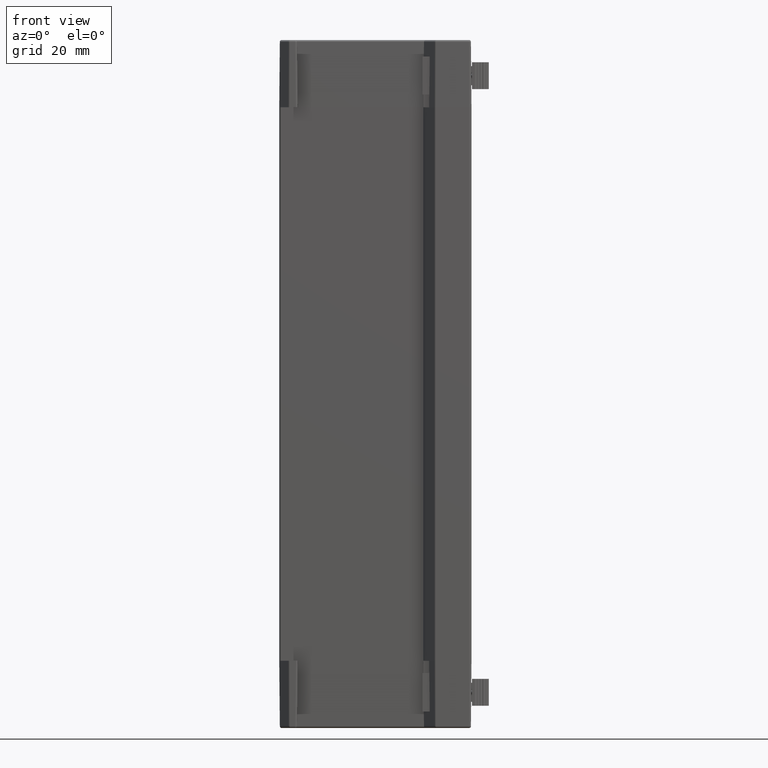
[diagram: clean part render]
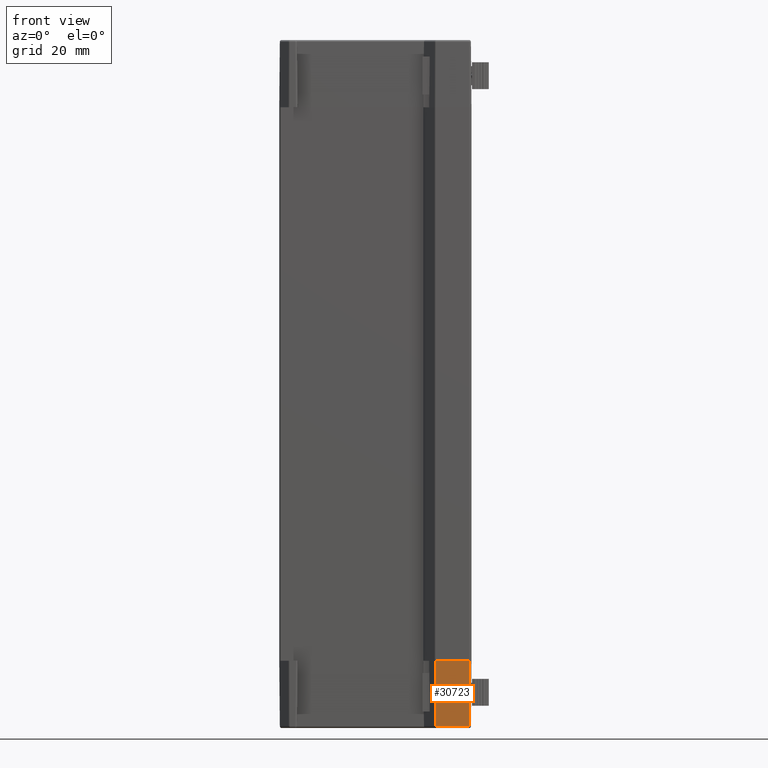
[diagram: same view with one face highlighted and labeled with its STEP entity id]
A machine part, front view. The second image highlights one B-rep face of the part: STEP entity #30723.
In plain terms, the highlighted planar face has unit normal (0, -1, -0.0087).
Its self-contained STEP definition (entity closure, byte-faithful):
#970 = VERTEX_POINT ( 'NONE', #11412 ) ;
#3607 = VERTEX_POINT ( 'NONE', #14065 ) ;
#3614 = VERTEX_POINT ( 'NONE', #14072 ) ;
#3622 = VERTEX_POINT ( 'NONE', #14080 ) ;
#7637 = EDGE_LOOP ( 'NONE', ( #25037, #25038, #25039, #25040 ) ) ;
#11412 = CARTESIAN_POINT ( 'NONE',  ( 15.76856604640999900, -29.95160516989397300, -17.00436326774996600 ) ) ;
#14065 = CARTESIAN_POINT ( 'NONE',  ( 15.70709889519265300, -30.09999999999766000, 0.0000000000000000000 ) ) ;
#14072 = CARTESIAN_POINT ( 'NONE',  ( 24.50001903846661800, -30.09999999999766400, -8.673617379884035500E-016 ) ) ;
#14080 = CARTESIAN_POINT ( 'NONE',  ( 24.35162420835999700, -29.95160516989230700, -17.00436326784510400 ) ) ;
#25037 = ORIENTED_EDGE ( 'NONE', *, *, #38009, .T. ) ;
#25038 = ORIENTED_EDGE ( 'NONE', *, *, #38004, .T. ) ;
#25039 = ORIENTED_EDGE ( 'NONE', *, *, #37612, .F. ) ;
#25040 = ORIENTED_EDGE ( 'NONE', *, *, #38013, .T. ) ;
#27975 = FACE_OUTER_BOUND ( 'NONE', #7637, .T. ) ;
#27983 = AXIS2_PLACEMENT_3D ( 'NONE', #29454, #29455, #29456 ) ;
#29453 = PLANE ( 'NONE',  #27983 ) ;
#29454 = CARTESIAN_POINT ( 'NONE',  ( 15.50000000000000000, -30.10000000000000100, 0.0000000000000000000 ) ) ;
#29455 = DIRECTION ( 'NONE',  ( 0.0000000000000000000, -0.9999619230641713100, -0.008726535498373752500 ) ) ;
#29456 = DIRECTION ( 'NONE',  ( 0.0000000000000000000, 0.008726535498373752500, -0.9999619230641713100 ) ) ;
#30723 = ADVANCED_FACE ( 'NONE', ( #27975 ), #29453, .T. ) ;
#37612 = EDGE_CURVE ( 'NONE', #3622, #970, #41743, .T. ) ;
#38004 = EDGE_CURVE ( 'NONE', #3607, #970, #43111, .T. ) ;
#38009 = EDGE_CURVE ( 'NONE', #3614, #3607, #43125, .T. ) ;
#38013 = EDGE_CURVE ( 'NONE', #3622, #3614, #43139, .T. ) ;
#40505 = VECTOR ( 'NONE', #41745, 1000.000000000000000 ) ;
#40948 = VECTOR ( 'NONE', #43113, 1000.000000000000100 ) ;
#40952 = VECTOR ( 'NONE', #43127, 1000.000000000000000 ) ;
#40955 = VECTOR ( 'NONE', #43141, 1000.000000000000000 ) ;
#41743 = LINE ( 'NONE', #41744, #40505 ) ;
#41744 = CARTESIAN_POINT ( 'NONE',  ( 90.18000000012999400, -29.95160516989208000, -17.00436326774993000 ) ) ;
#41745 = DIRECTION ( 'NONE',  ( -1.000000000000000000, 0.0000000000000000000, 0.0000000000000000000 ) ) ;
#43111 = LINE ( 'NONE', #43112, #40948 ) ;
#43112 = CARTESIAN_POINT ( 'NONE',  ( 15.70709889519000100, -30.10000000000000100, 0.0000000000000000000 ) ) ;
#43113 = DIRECTION ( 'NONE',  ( 0.003614625742538141000, 0.008726478489828777600, -0.9999553905319515900 ) ) ;
#43125 = LINE ( 'NONE', #43126, #40952 ) ;
#43126 = CARTESIAN_POINT ( 'NONE',  ( 15.50000000000000000, -30.10000000000000100, 0.0000000000000000000 ) ) ;
#43127 = DIRECTION ( 'NONE',  ( -1.000000000000000000, -0.0000000000000000000, -0.0000000000000000000 ) ) ;
#43139 = LINE ( 'NONE', #43140, #40955 ) ;
#43140 = CARTESIAN_POINT ( 'NONE',  ( 24.35162420836000100, -29.95160516989631500, -17.00436326774997300 ) ) ;
#43141 = DIRECTION ( 'NONE',  ( 0.008726203244315160200, -0.008726203243944052500, 0.9999238504775672700 ) ) ;